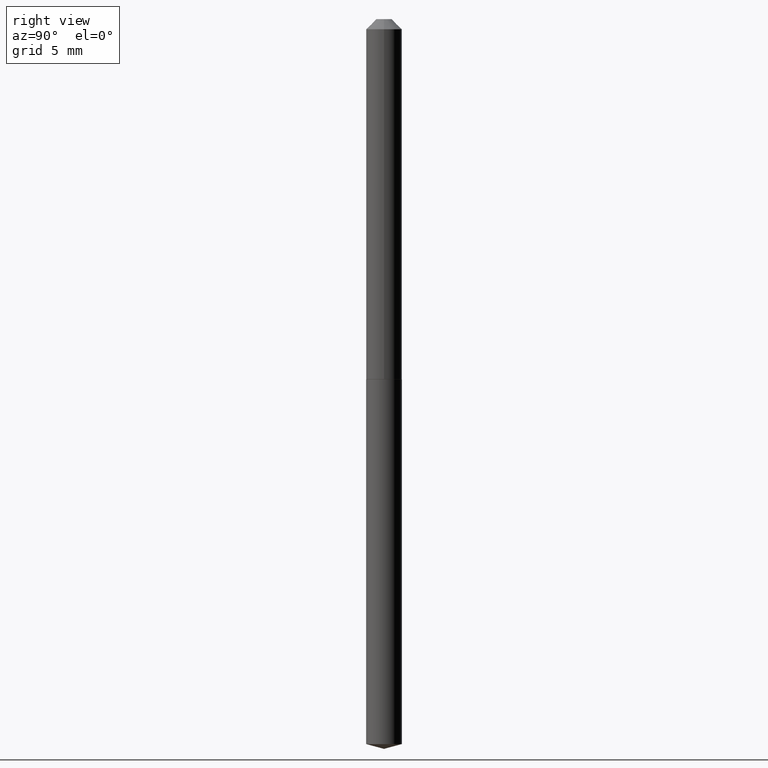
[diagram: clean part render]
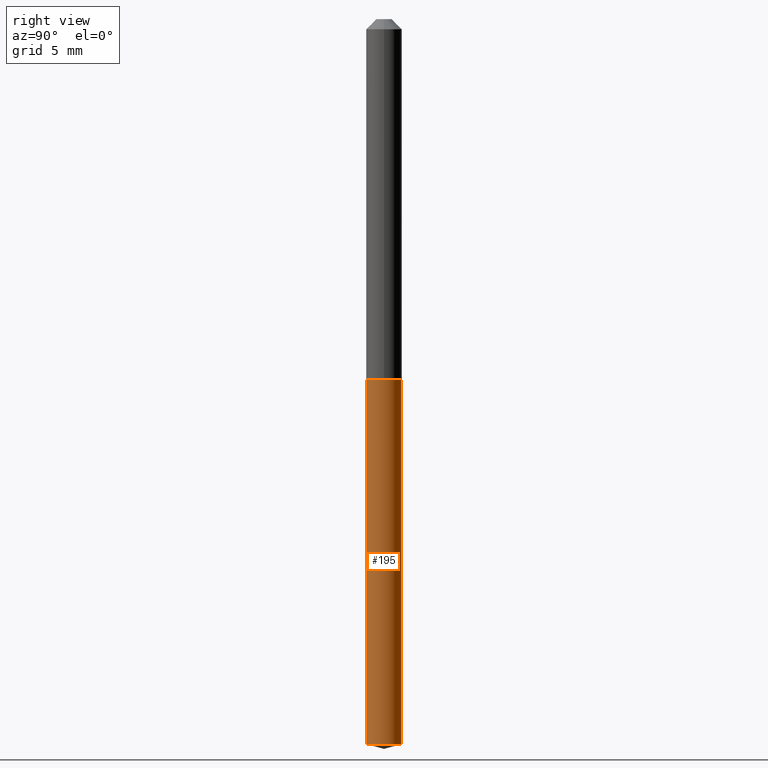
[diagram: same view with one face highlighted and labeled with its STEP entity id]
A machine part, right view. The second image highlights one B-rep face of the part: STEP entity #195.
In plain terms, the highlighted cylindrical surface (edge-blend (fillet) strip) has radius 1.397 mm, axis along (-0, 0, 1).
Its self-contained STEP definition (entity closure, byte-faithful):
#3 = CARTESIAN_POINT ( 'NONE',  ( 3.907985046680821720E-16, 0.05499999999999612837, -1.110000000000000098 ) ) ;
#5 = VERTEX_POINT ( 'NONE', #243 ) ;
#9 = CARTESIAN_POINT ( 'NONE',  ( 5.467228502809281415E-29, -7.802999169593315516E-15, -2.235262794416288390 ) ) ;
#19 = CIRCLE ( 'NONE', #32, 0.05500000000000000028 ) ;
#28 = ORIENTED_EDGE ( 'NONE', *, *, #138, .T. ) ;
#30 = DIRECTION ( 'NONE',  ( -2.446324664428035755E-29, 3.490255701126888222E-15, 1.000000000000000000 ) ) ;
#32 = AXIS2_PLACEMENT_3D ( 'NONE', #321, #242, #358 ) ;
#37 = VERTEX_POINT ( 'NONE', #310 ) ;
#52 = VECTOR ( 'NONE', #231, 39.37007874015748143 ) ;
#56 = EDGE_CURVE ( 'NONE', #366, #5, #191, .T. ) ;
#76 = CARTESIAN_POINT ( 'NONE',  ( 3.907985046681098807E-16, 0.05499999999999612837, -1.110000000000000098 ) ) ;
#97 = FACE_OUTER_BOUND ( 'NONE', #238, .T. ) ;
#138 = EDGE_CURVE ( 'NONE', #37, #318, #244, .T. ) ;
#139 = AXIS2_PLACEMENT_3D ( 'NONE', #154, #30, #268 ) ;
#151 = ORIENTED_EDGE ( 'NONE', *, *, #177, .F. ) ;
#154 = CARTESIAN_POINT ( 'NONE',  ( 2.714470374865501353E-29, -3.875544286115891751E-15, -1.109999999999999876 ) ) ;
#177 = EDGE_CURVE ( 'NONE', #5, #318, #19, .T. ) ;
#180 = ORIENTED_EDGE ( 'NONE', *, *, #330, .T. ) ;
#191 = LINE ( 'NONE', #308, #52 ) ;
#193 = DIRECTION ( 'NONE',  ( -6.982962677686266711E-15, -1.000000000000000000, 4.966996352116842287E-15 ) ) ;
#195 = ADVANCED_FACE ( 'NONE', ( #97 ), #273, .T. ) ;
#218 = CIRCLE ( 'NONE', #322, 0.05500000000000000028 ) ;
#231 = DIRECTION ( 'NONE',  ( -2.446324664428035755E-29, 3.490255701126888616E-15, 1.000000000000000000 ) ) ;
#238 = EDGE_LOOP ( 'NONE', ( #180, #28, #151, #266 ) ) ;
#242 = DIRECTION ( 'NONE',  ( -2.446324664428035755E-29, 3.490255701126888222E-15, 1.000000000000000000 ) ) ;
#243 = CARTESIAN_POINT ( 'NONE',  ( -3.840629472727175717E-16, -0.05500000000000387912, -1.109999999999999876 ) ) ;
#244 = LINE ( 'NONE', #3, #259 ) ;
#251 = DIRECTION ( 'NONE',  ( -2.446324664428035755E-29, 3.490255701126888222E-15, 1.000000000000000000 ) ) ;
#259 = VECTOR ( 'NONE', #328, 39.37007874015748143 ) ;
#266 = ORIENTED_EDGE ( 'NONE', *, *, #56, .F. ) ;
#268 = DIRECTION ( 'NONE',  ( -6.982962677686266711E-15, -1.000000000000000000, 2.483498176058421144E-15 ) ) ;
#273 = CYLINDRICAL_SURFACE ( 'NONE', #139, 0.05500000000000000028 ) ;
#280 = CARTESIAN_POINT ( 'NONE',  ( -3.840629472726899616E-16, -0.05500000000000779959, -2.235262794416287946 ) ) ;
#308 = CARTESIAN_POINT ( 'NONE',  ( -3.840629472727175717E-16, -0.05500000000000387912, -1.109999999999999876 ) ) ;
#310 = CARTESIAN_POINT ( 'NONE',  ( 3.907985046681096342E-16, 0.05499999999999219402, -2.235262794416288390 ) ) ;
#318 = VERTEX_POINT ( 'NONE', #76 ) ;
#321 = CARTESIAN_POINT ( 'NONE',  ( 2.714470374865501353E-29, -3.875544286115891751E-15, -1.109999999999999876 ) ) ;
#322 = AXIS2_PLACEMENT_3D ( 'NONE', #9, #251, #193 ) ;
#328 = DIRECTION ( 'NONE',  ( -2.446324664428035755E-29, 3.490255701126888616E-15, 1.000000000000000000 ) ) ;
#330 = EDGE_CURVE ( 'NONE', #366, #37, #218, .T. ) ;
#358 = DIRECTION ( 'NONE',  ( -6.982962677686266711E-15, -1.000000000000000000, 2.483498176058421144E-15 ) ) ;
#366 = VERTEX_POINT ( 'NONE', #280 ) ;